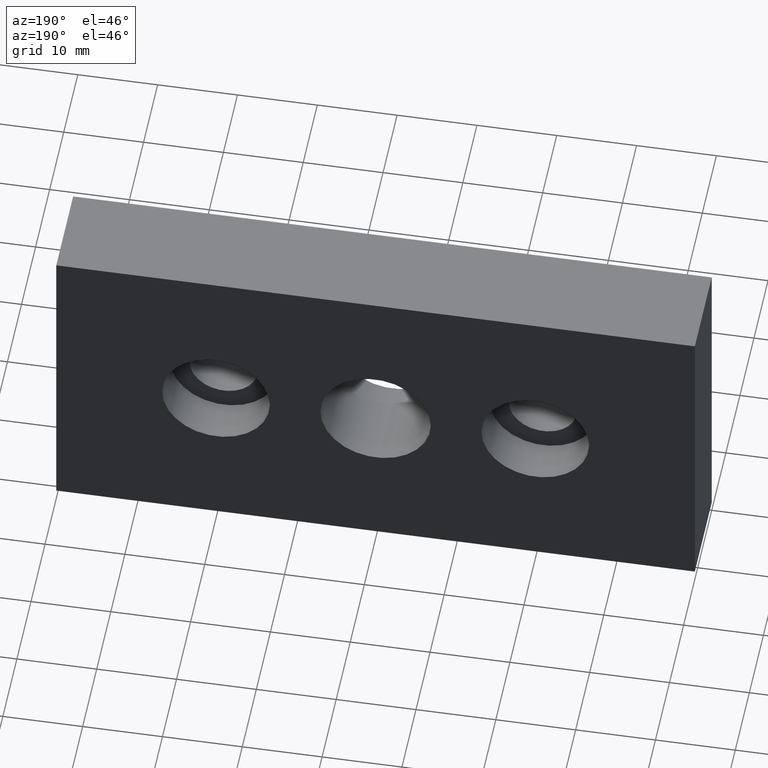
[diagram: clean part render]
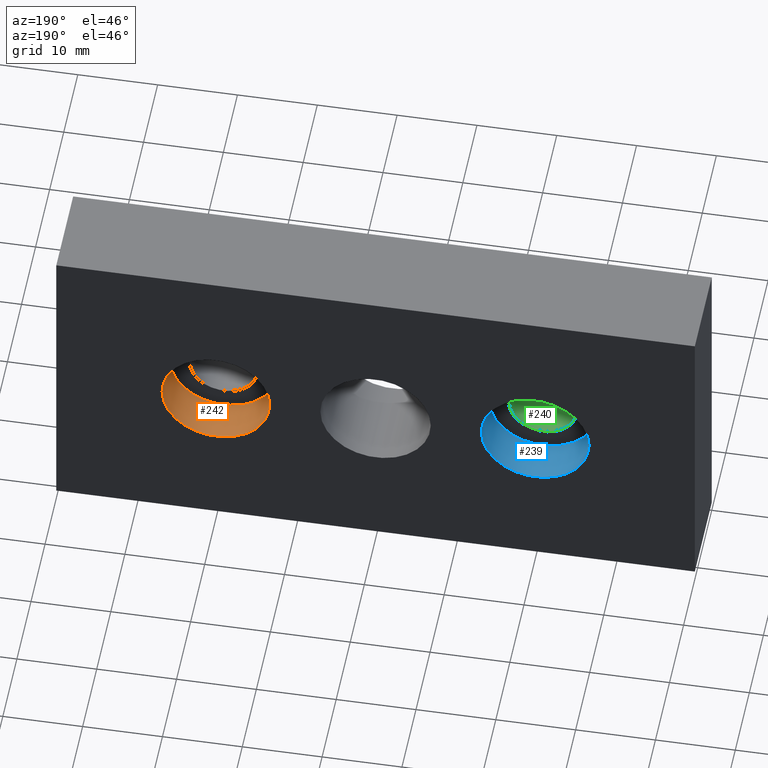
[diagram: same view with three faces highlighted in distinct colors, each labeled with its STEP entity id]
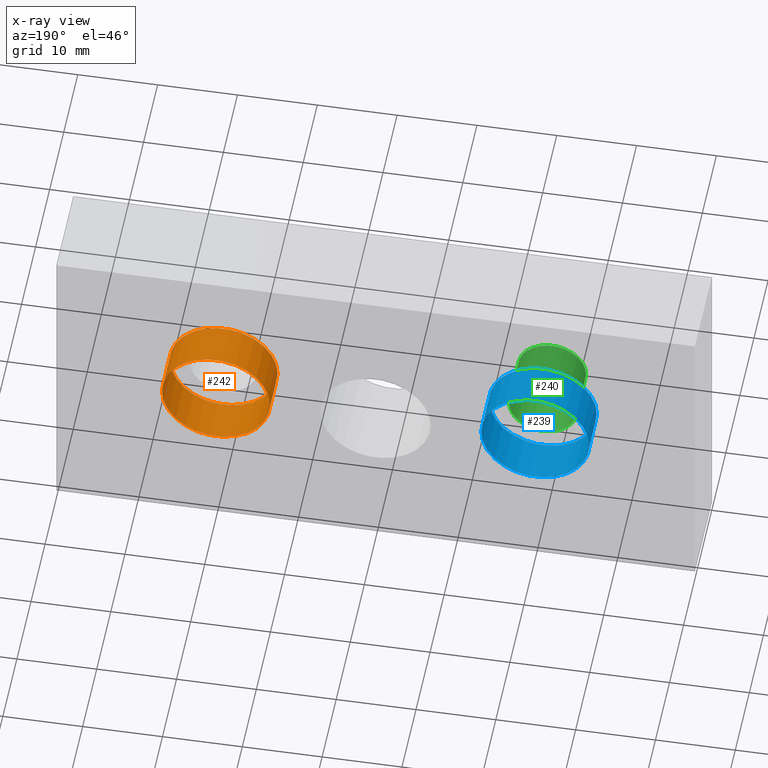
[diagram: x-ray of the same camera — body ghosted, the three highlighted faces saturated]
A machine part, auxiliary view with three faces highlighted in distinct colors.
The next image is the same camera in x-ray (body ghosted, the three faces saturated) — at least one of them is partly hidden behind the body in this view.
Their STEP definitions:

[orange] entity #242 — the highlighted cylindrical surface (bore or boss wall) has radius 6.75 mm, axis along (0, 1, 0).
#17=LINE('',#404,#34);
#34=VECTOR('',#335,6.75);
#51=CYLINDRICAL_SURFACE('',#284,6.75);
#66=FACE_OUTER_BOUND('',#81,.T.);
#81=EDGE_LOOP('',(#182,#183,#184,#185,#186,#187));
#102=CIRCLE('',#281,6.75);
#103=CIRCLE('',#282,6.75);
#105=CIRCLE('',#285,6.75);
#106=CIRCLE('',#286,6.75);
#117=VERTEX_POINT('',#393);
#118=VERTEX_POINT('',#394);
#120=VERTEX_POINT('',#400);
#121=VERTEX_POINT('',#401);
#142=EDGE_CURVE('',#117,#118,#102,.T.);
#143=EDGE_CURVE('',#118,#117,#103,.T.);
#145=EDGE_CURVE('',#120,#121,#105,.T.);
#146=EDGE_CURVE('',#121,#120,#106,.T.);
#147=EDGE_CURVE('',#121,#118,#17,.T.);
#182=ORIENTED_EDGE('',*,*,#145,.F.);
#183=ORIENTED_EDGE('',*,*,#146,.F.);
#184=ORIENTED_EDGE('',*,*,#147,.T.);
#185=ORIENTED_EDGE('',*,*,#142,.F.);
#186=ORIENTED_EDGE('',*,*,#143,.F.);
#187=ORIENTED_EDGE('',*,*,#147,.F.);
#242=ADVANCED_FACE('',(#66),#51,.F.);
#281=AXIS2_PLACEMENT_3D('',#395,#323,#324);
#282=AXIS2_PLACEMENT_3D('',#396,#325,#326);
#284=AXIS2_PLACEMENT_3D('',#399,#329,#330);
#285=AXIS2_PLACEMENT_3D('',#402,#331,#332);
#286=AXIS2_PLACEMENT_3D('',#403,#333,#334);
#323=DIRECTION('center_axis',(0.,1.,0.));
#324=DIRECTION('ref_axis',(1.,0.,0.));
#325=DIRECTION('center_axis',(0.,1.,0.));
#326=DIRECTION('ref_axis',(1.,0.,0.));
#329=DIRECTION('center_axis',(0.,1.,0.));
#330=DIRECTION('ref_axis',(1.,0.,0.));
#331=DIRECTION('center_axis',(0.,-1.,0.));
#332=DIRECTION('ref_axis',(1.,0.,0.));
#333=DIRECTION('center_axis',(0.,-1.,0.));
#334=DIRECTION('ref_axis',(1.,0.,0.));
#335=DIRECTION('',(0.,-1.,0.));
#393=CARTESIAN_POINT('',(26.75,6.5,0.));
#394=CARTESIAN_POINT('',(13.25,6.5,8.26636589424463E-16));
#395=CARTESIAN_POINT('Origin',(20.,6.5,0.));
#396=CARTESIAN_POINT('Origin',(20.,6.5,0.));
#399=CARTESIAN_POINT('Origin',(20.,9.25,0.));
#400=CARTESIAN_POINT('',(26.75,12.,0.));
#401=CARTESIAN_POINT('',(13.25,12.,8.26636589424463E-16));
#402=CARTESIAN_POINT('Origin',(20.,12.,0.));
#403=CARTESIAN_POINT('Origin',(20.,12.,0.));
#404=CARTESIAN_POINT('',(13.25,9.25,8.26636589424463E-16));

[blue] entity #239 — the highlighted cylindrical surface (bore or boss wall) has radius 6.75 mm, axis along (0, 1, 0).
#15=LINE('',#387,#32);
#32=VECTOR('',#315,6.75);
#49=CYLINDRICAL_SURFACE('',#275,6.75);
#63=FACE_OUTER_BOUND('',#77,.T.);
#77=EDGE_LOOP('',(#169,#170,#171,#172,#173,#174));
#96=CIRCLE('',#272,6.75);
#97=CIRCLE('',#273,6.75);
#99=CIRCLE('',#276,6.75);
#100=CIRCLE('',#277,6.75);
#111=VERTEX_POINT('',#376);
#112=VERTEX_POINT('',#377);
#114=VERTEX_POINT('',#383);
#115=VERTEX_POINT('',#384);
#134=EDGE_CURVE('',#111,#112,#96,.T.);
#135=EDGE_CURVE('',#112,#111,#97,.T.);
#137=EDGE_CURVE('',#114,#115,#99,.T.);
#138=EDGE_CURVE('',#115,#114,#100,.T.);
#139=EDGE_CURVE('',#115,#112,#15,.T.);
#169=ORIENTED_EDGE('',*,*,#137,.F.);
#170=ORIENTED_EDGE('',*,*,#138,.F.);
#171=ORIENTED_EDGE('',*,*,#139,.T.);
#172=ORIENTED_EDGE('',*,*,#134,.F.);
#173=ORIENTED_EDGE('',*,*,#135,.F.);
#174=ORIENTED_EDGE('',*,*,#139,.F.);
#239=ADVANCED_FACE('',(#63),#49,.F.);
#272=AXIS2_PLACEMENT_3D('',#378,#303,#304);
#273=AXIS2_PLACEMENT_3D('',#379,#305,#306);
#275=AXIS2_PLACEMENT_3D('',#382,#309,#310);
#276=AXIS2_PLACEMENT_3D('',#385,#311,#312);
#277=AXIS2_PLACEMENT_3D('',#386,#313,#314);
#303=DIRECTION('center_axis',(0.,1.,0.));
#304=DIRECTION('ref_axis',(1.,0.,0.));
#305=DIRECTION('center_axis',(0.,1.,0.));
#306=DIRECTION('ref_axis',(1.,0.,0.));
#309=DIRECTION('center_axis',(0.,1.,0.));
#310=DIRECTION('ref_axis',(1.,0.,0.));
#311=DIRECTION('center_axis',(0.,-1.,0.));
#312=DIRECTION('ref_axis',(1.,0.,0.));
#313=DIRECTION('center_axis',(0.,-1.,0.));
#314=DIRECTION('ref_axis',(1.,0.,0.));
#315=DIRECTION('',(0.,-1.,0.));
#376=CARTESIAN_POINT('',(-13.25,6.5,0.));
#377=CARTESIAN_POINT('',(-26.75,6.5,8.26636589424463E-16));
#378=CARTESIAN_POINT('Origin',(-20.,6.5,0.));
#379=CARTESIAN_POINT('Origin',(-20.,6.5,0.));
#382=CARTESIAN_POINT('Origin',(-20.,9.25,0.));
#383=CARTESIAN_POINT('',(-13.25,12.,0.));
#384=CARTESIAN_POINT('',(-26.75,12.,8.26636589424463E-16));
#385=CARTESIAN_POINT('Origin',(-20.,12.,0.));
#386=CARTESIAN_POINT('Origin',(-20.,12.,0.));
#387=CARTESIAN_POINT('',(-26.75,9.25,8.26636589424463E-16));

[green] entity #240 — the highlighted cylindrical surface (bore or boss wall) has radius 4.25 mm, axis along (0, 1, 0).
#16=LINE('',#390,#33);
#33=VECTOR('',#318,4.25);
#50=CYLINDRICAL_SURFACE('',#278,4.25);
#64=FACE_OUTER_BOUND('',#78,.T.);
#78=EDGE_LOOP('',(#175,#176,#177,#178));
#98=CIRCLE('',#274,4.25);
#101=CIRCLE('',#279,4.25);
#113=VERTEX_POINT('',#380);
#116=VERTEX_POINT('',#389);
#136=EDGE_CURVE('',#113,#113,#98,.T.);
#140=EDGE_CURVE('',#113,#116,#16,.T.);
#141=EDGE_CURVE('',#116,#116,#101,.T.);
#175=ORIENTED_EDGE('',*,*,#136,.T.);
#176=ORIENTED_EDGE('',*,*,#140,.T.);
#177=ORIENTED_EDGE('',*,*,#141,.F.);
#178=ORIENTED_EDGE('',*,*,#140,.F.);
#240=ADVANCED_FACE('',(#64),#50,.F.);
#274=AXIS2_PLACEMENT_3D('',#381,#307,#308);
#278=AXIS2_PLACEMENT_3D('',#388,#316,#317);
#279=AXIS2_PLACEMENT_3D('',#391,#319,#320);
#307=DIRECTION('center_axis',(0.,1.,0.));
#308=DIRECTION('ref_axis',(1.,0.,0.));
#316=DIRECTION('center_axis',(0.,1.,0.));
#317=DIRECTION('ref_axis',(1.,0.,0.));
#318=DIRECTION('',(0.,-1.,0.));
#319=DIRECTION('center_axis',(0.,1.,0.));
#320=DIRECTION('ref_axis',(1.,0.,0.));
#380=CARTESIAN_POINT('',(-24.25,6.49999999999999,5.20474889637625E-16));
#381=CARTESIAN_POINT('Origin',(-20.,6.49999999999999,0.));
#388=CARTESIAN_POINT('Origin',(-20.,-78.2441133814278,0.));
#389=CARTESIAN_POINT('',(-24.25,0.,5.20474889637625E-16));
#390=CARTESIAN_POINT('',(-24.25,-78.2441133814278,5.20474889637625E-16));
#391=CARTESIAN_POINT('Origin',(-20.,0.,0.));